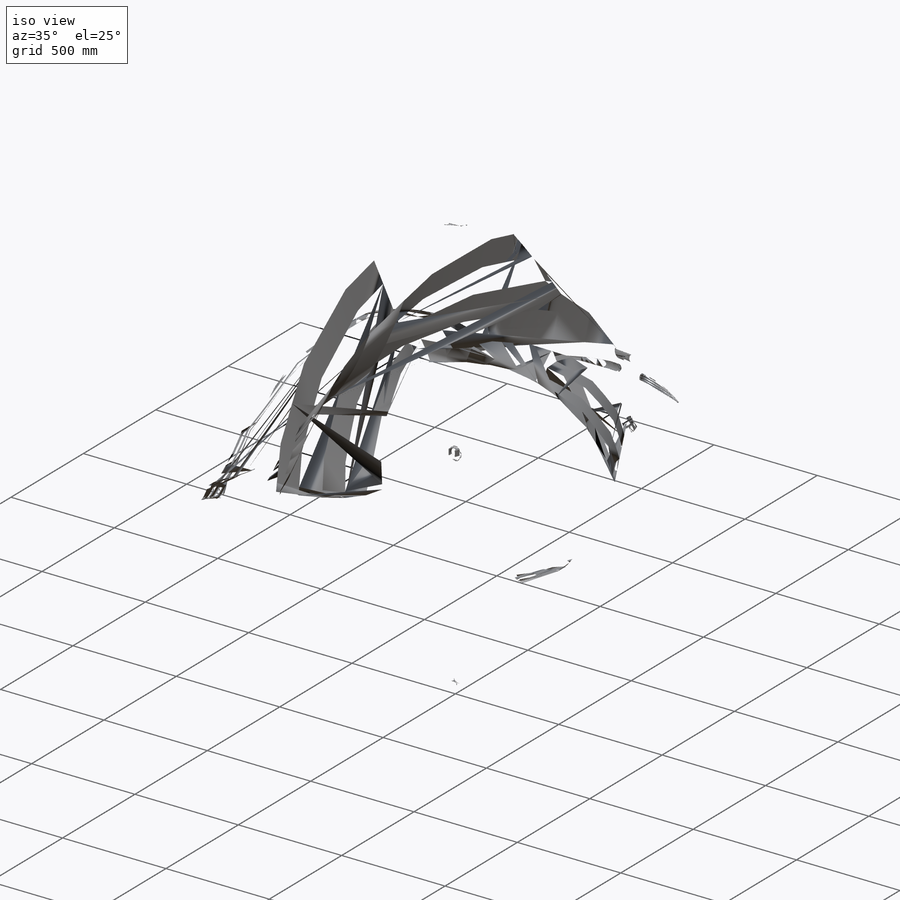
[diagram: iso view]
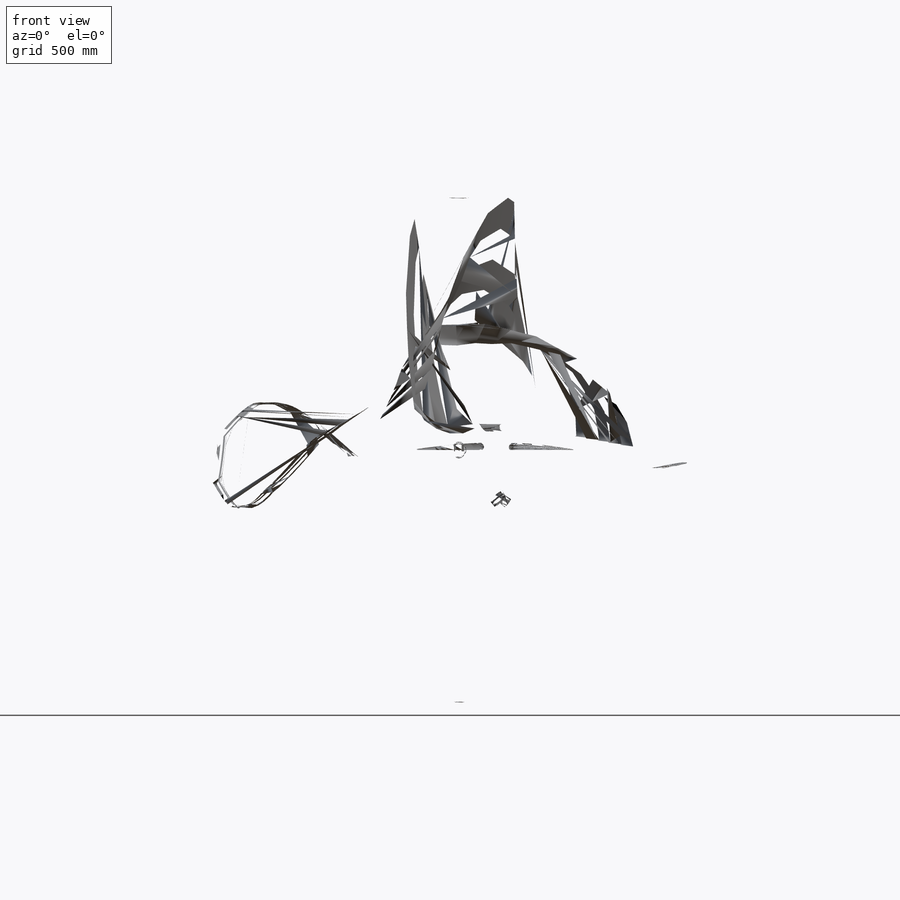
[diagram: front view]
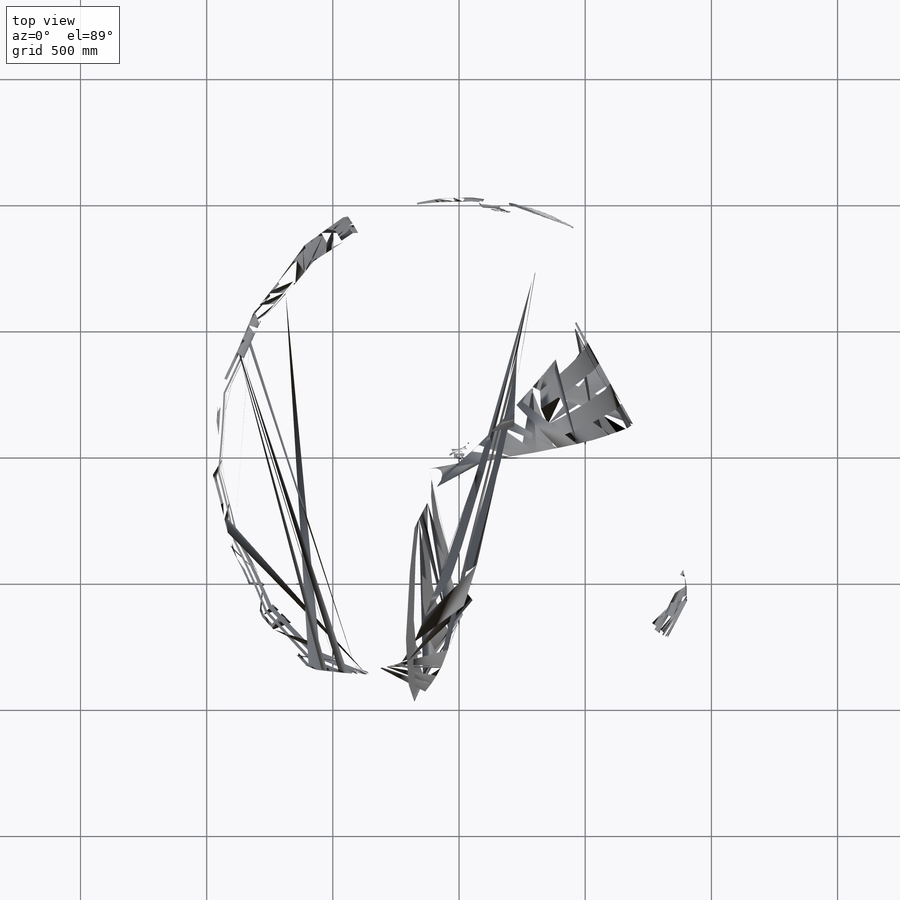
[diagram: top view]
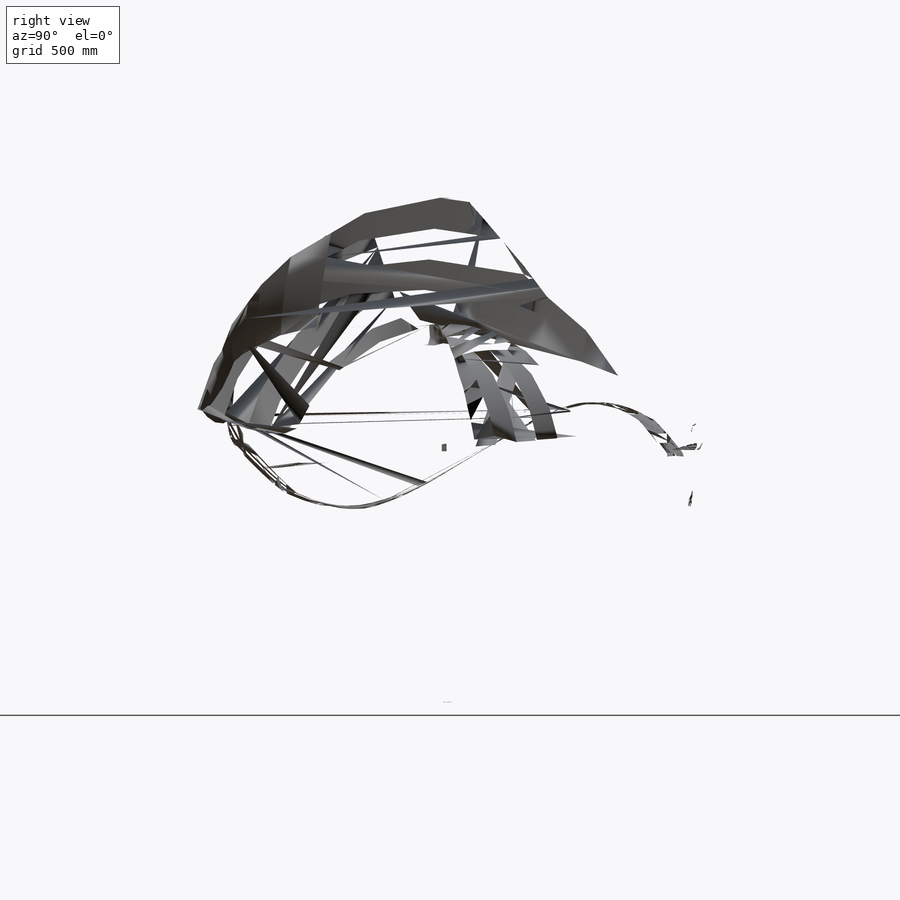
[diagram: right view]
SOLIDWORKS PART (.sldprt)
format: sldprt  version: not decoded by parser v0  size: 687,616 bytes
history: native  units: mm
features: sketch x7, fillet x5, cut_extrude x3, extrude x2, material x1 (+13 scaffold rows collapsed)
feature tree (31):
  scaffold x13  (default folders/planes/origin — collapsed)
  material  "ABS"
  sketch  "Sketch1"  dims[D4=4.0mm D1=40.0mm D2=30.0mm D3=10.0mm]
  extrude  "Boss-Extrude1"  Depth=19mm
  sketch  "Sketch8"  dims[D1=2.0mm]
  cut_extrude  "Cut-Extrude3"  [1 undecoded]
  sketch  "Sketch2"  dims[D1=26.0mm D2=3.2mm D3=3.8mm D4=3.8mm]
  cut_extrude  "Cut-Extrude1"  [1 undecoded]
  sketch  "Sketch3"  dims[c1.D1=38.0mm c1.D2=36.0mm c2.D2=45.0deg c2.D3=20.0mm c2.D4=~28.284271mm c3.D3=20.0mm]
  sketch  "Sketch4"  dims[D1=2.0mm]
  sketch  "Sketch7"  dims[c1.D1=32.0mm c1.D2=32.0mm c2.D1=10.0mm c2.D2=32.0mm c2.D3=32.0mm c3.D1=10.0mm c3.D3=32.0mm]
  extrude  "Boss-Extrude2"  Depth=11mm
  fillet  "Fillet14"  Radius=2mm
  fillet  "Fillet13"  Radius=3mm
  sketch  "Sketch6"  dims[D1=2.9mm D2=32.0mm D3=32.0mm D4=20.0mm]
  cut_extrude  "Cut-Extrude2"  Depth=8mm
  fillet  "Fillet6"  Radius=0.75mm
  fillet  "Fillet18"  Radius=0.75mm
  fillet  "Fillet19"  Radius=0.75mm
decode coverage: 15 of 17 modeling features carry decoded parameters
note: ~ marks probable driven/reference dimensions
note: 2 parameter values undecoded
note: suppression state not decoded; provenance and decode notes live in map.json
